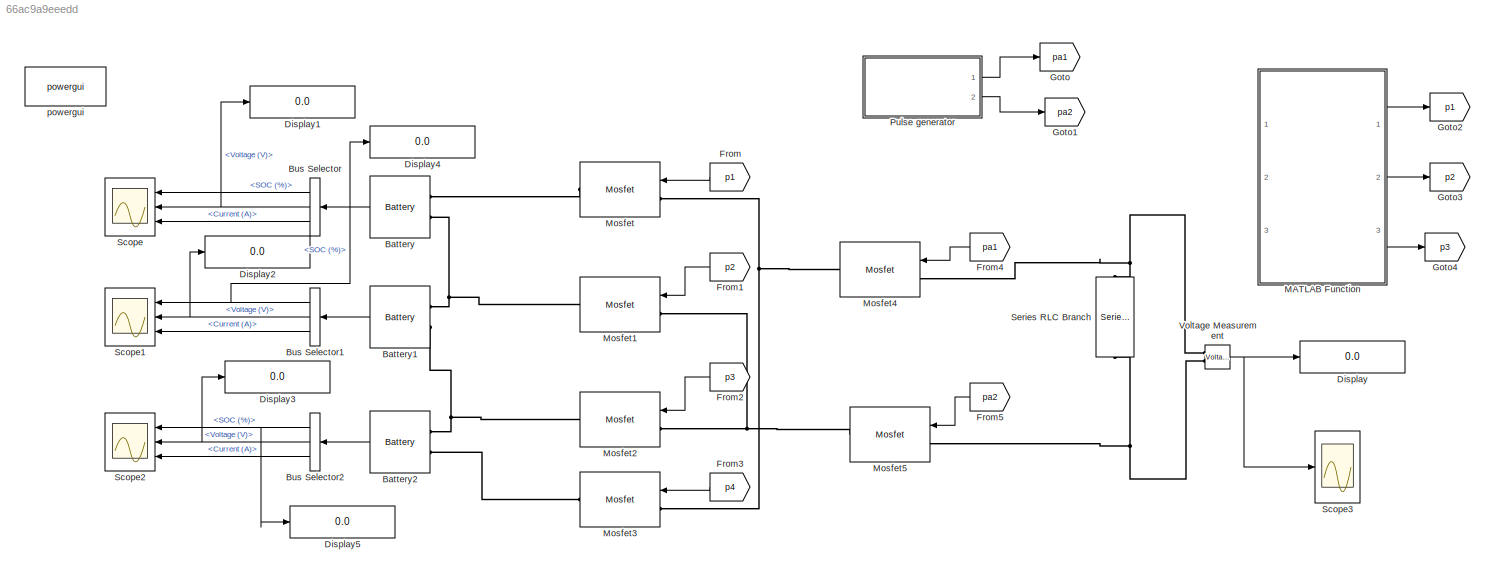
MODEL slx_66ac9a9eeedd
KIND model
CONFIG AbsTol = auto
CONFIG EnableMultiTasking = off
CONFIG FixedStep = auto
CONFIG MaxStep = auto
CONFIG MinStep = auto
CONFIG RelTol = 1e-3
CONFIG SampleTimeConstraint = Unconstrained
CONFIG SolverName = VariableStepAuto
CONFIG StartTime = 0.0
CONFIG StopTime = 1
BLOCK [Reference] Battery  REF=spsBatteryLib/Battery
  Ports = [0, 1, 0, 0, 0, 2]
  SourceBlock = spsBatteryLib/Battery
  SourceProductBaseCode = PS
  SourceType = Battery
BLOCK [Reference] Battery1  REF=spsBatteryLib/Battery
  Ports = [0, 1, 0, 0, 0, 2]
  SourceBlock = spsBatteryLib/Battery
  SourceProductBaseCode = PS
  SourceType = Battery
BLOCK [Reference] Battery2  REF=spsBatteryLib/Battery
  Ports = [0, 1, 0, 0, 0, 2]
  SourceBlock = spsBatteryLib/Battery
  SourceProductBaseCode = PS
  SourceType = Battery
BLOCK [BusSelector] Bus Selector
  OutputSignals = SOC (%),Voltage (V),Current (A)
  Ports = [1, 3]
BLOCK [BusSelector] Bus Selector1
  OutputSignals = SOC (%),Voltage (V),Current (A)
  Ports = [1, 3]
BLOCK [BusSelector] Bus Selector2
  OutputSignals = SOC (%),Voltage (V),Current (A)
  Ports = [1, 3]
BLOCK [Display] Display
  Decimation = 1
  Ports = [1]
BLOCK [Display] Display1
  Decimation = 1
  Ports = [1]
BLOCK [Display] Display2
  Decimation = 1
  Ports = [1]
BLOCK [Display] Display3
  Decimation = 1
  Ports = [1]
BLOCK [Display] Display4
  Decimation = 1
  Ports = [1]
BLOCK [Display] Display5
  Decimation = 1
  Ports = [1]
BLOCK [From] From
  GotoTag = p1
BLOCK [From] From1
  GotoTag = p2
BLOCK [From] From2
  GotoTag = p3
BLOCK [From] From3
  GotoTag = p4
BLOCK [From] From4
  GotoTag = pa1
BLOCK [From] From5
  GotoTag = pa2
BLOCK [Goto] Goto
  GotoTag = pa1
BLOCK [Goto] Goto1
  GotoTag = pa2
BLOCK [Goto] Goto2
  GotoTag = p1
BLOCK [Goto] Goto3
  GotoTag = p2
BLOCK [Goto] Goto4
  GotoTag = p3
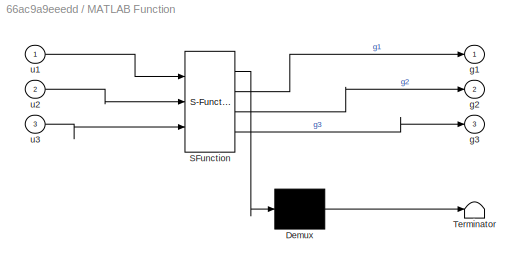
BLOCK [SubSystem] MATLAB Function
  ErrorFcn = Stateflow.Translate.translate
  PermitHierarchicalResolution = ExplicitOnly
  Ports = [3, 3]
  RequestExecContextInheritance = off
  SFBlockType = MATLAB Function
  TreatAsAtomicUnit = on
BLOCK [Demux] MATLAB Function/ Demux 
  Outputs = 1
  Ports = [1, 1]
BLOCK [S-Function] MATLAB Function/ SFunction 
  EnableBusSupport = on
  FunctionName = sf_sfun
  PortCounts = [3 4]
  Ports = [3, 4]
  SFcnIsStateOwnerBlock = off
  SFunctionDeploymentMode = off
  Tag = Stateflow S-Function 2
BLOCK [Terminator] MATLAB Function/ Terminator 
BLOCK [Outport] MATLAB Function/g1
BLOCK [Outport] MATLAB Function/g2
  Port = 2
BLOCK [Outport] MATLAB Function/g3
  Port = 3
BLOCK [Inport] MATLAB Function/u1
BLOCK [Inport] MATLAB Function/u2
  Port = 2
BLOCK [Inport] MATLAB Function/u3
  Port = 3
BLOCK [Reference] Mosfet  REF=spsMosfetLib/Mosfet
  Ports = [1, 0, 0, 0, 0, 1, 1]
  SourceBlock = spsMosfetLib/Mosfet
  SourceProductBaseCode = PS
  SourceType = Mosfet
BLOCK [Reference] Mosfet1  REF=spsMosfetLib/Mosfet
  Ports = [1, 0, 0, 0, 0, 1, 1]
  SourceBlock = spsMosfetLib/Mosfet
  SourceProductBaseCode = PS
  SourceType = Mosfet
BLOCK [Reference] Mosfet2  REF=spsMosfetLib/Mosfet
  Ports = [1, 0, 0, 0, 0, 1, 1]
  SourceBlock = spsMosfetLib/Mosfet
  SourceProductBaseCode = PS
  SourceType = Mosfet
BLOCK [Reference] Mosfet3  REF=spsMosfetLib/Mosfet
  Ports = [1, 0, 0, 0, 0, 1, 1]
  SourceBlock = spsMosfetLib/Mosfet
  SourceProductBaseCode = PS
  SourceType = Mosfet
BLOCK [Reference] Mosfet4  REF=spsMosfetLib/Mosfet
  Ports = [1, 0, 0, 0, 0, 1, 1]
  SourceBlock = spsMosfetLib/Mosfet
  SourceProductBaseCode = PS
  SourceType = Mosfet
BLOCK [Reference] Mosfet5  REF=spsMosfetLib/Mosfet
  Ports = [1, 0, 0, 0, 0, 1, 1]
  SourceBlock = spsMosfetLib/Mosfet
  SourceProductBaseCode = PS
  SourceType = Mosfet
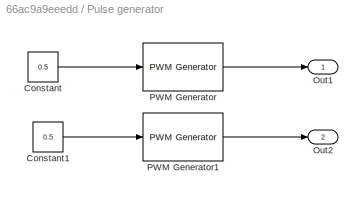
BLOCK [SubSystem] Pulse generator
  Ports = [0, 2]
  RequestExecContextInheritance = off
BLOCK [Constant] Pulse generator/Constant
  Value = 0.5
BLOCK [Constant] Pulse generator/Constant1
  Value = 0.5
BLOCK [Outport] Pulse generator/Out1
BLOCK [Outport] Pulse generator/Out2
  Port = 2
BLOCK [Reference] Pulse generator/PWM Generator  REF=eePwmGenerator/PWM Generator
  Ports = [1, 1]
  SourceBlock = eePwmGenerator/PWM Generator
  SourceProductBaseCode = PS
  SourceType = PWM Generator
BLOCK [Reference] Pulse generator/PWM Generator1  REF=eePwmGenerator/PWM Generator
  Ports = [1, 1]
  SourceBlock = eePwmGenerator/PWM Generator
  SourceProductBaseCode = PS
  SourceType = PWM Generator
BLOCK [Scope] Scope
  Floating = off
  NumInputPorts = 3
  Ports = [3]
  ScopeSpecificationString = Simulink.scopes.TimeScopeBlockCfg('CurrentConfiguration', extmgr.ConfigurationSet(extmgr.Configuration('Core','General UI',true),extmgr.Configuration('Core','Source UI',true),extmgr.Configuration('Sources','WiredSimulink',true),extmgr.Configuration('Visuals','Time Domain',true,'SerializedDisplays',{struct('MinYLimReal','-6.24983','MaxYLimReal','56.24998','YLabelReal','','MinYLimMag','0.00000','Max...<+1430ch>
BLOCK [Scope] Scope1
  Floating = off
  NumInputPorts = 3
  Ports = [3]
  ScopeSpecificationString = Simulink.scopes.TimeScopeBlockCfg('CurrentConfiguration', extmgr.ConfigurationSet(extmgr.Configuration('Core','General UI',true),extmgr.Configuration('Core','Source UI',true),extmgr.Configuration('Sources','WiredSimulink',true,'DataLoggingVariableName','ScopeData1'),extmgr.Configuration('Visuals','Time Domain',true,'SerializedDisplays',{struct('MinYLimReal','29.9999987','MaxYLimReal','30.0000001',...<+2834ch>
BLOCK [Scope] Scope2
  Floating = off
  NumInputPorts = 3
  Ports = [3]
  ScopeSpecificationString = Simulink.scopes.TimeScopeBlockCfg('CurrentConfiguration', extmgr.ConfigurationSet(extmgr.Configuration('Core','General UI',true),extmgr.Configuration('Core','Source UI',true),extmgr.Configuration('Sources','WiredSimulink',true,'DataLoggingVariableName','ScopeData2'),extmgr.Configuration('Visuals','Time Domain',true,'SerializedDisplays',{struct('MinYLimReal','-9.37487','MaxYLimReal','84.37499','YLa...<+2874ch>
BLOCK [Scope] Scope3
  Floating = off
  NumInputPorts = 1
  Ports = [1]
  ScopeSpecificationString = Simulink.scopes.TimeScopeBlockCfg('CurrentConfiguration', extmgr.ConfigurationSet(extmgr.Configuration('Core','General UI',true),extmgr.Configuration('Core','Source UI',true),extmgr.Configuration('Sources','WiredSimulink',true,'DataLoggingVariableName','ScopeData1'),extmgr.Configuration('Visuals','Time Domain',true),extmgr.Configuration('Tools','Plot Navigation',true),extmgr.Configuration('Tools',...<+40ch>
BLOCK [Reference] Series RLC Branch  REF=spsSeriesRLCBranchLib/Series RLC Branch
  NameLocation = left
  Ports = [0, 0, 0, 0, 0, 1, 1]
  SourceBlock = spsSeriesRLCBranchLib/Series RLC Branch
  SourceProductBaseCode = PS
  SourceType = Series RLC Branch
BLOCK [Reference] Voltage Measurement  REF=spsVoltageMeasurementLib/Voltage Measurement
  Ports = [0, 1, 0, 0, 0, 2]
  SourceBlock = spsVoltageMeasurementLib/Voltage Measurement
  SourceProductBaseCode = PS
  SourceType = Voltage Measurement
  UserDataPersistent = on
BLOCK [Reference] powergui  REF=spspowerguiLib/powergui
  Ports = []
  Priority = 1
  SourceBlock = spspowerguiLib/powergui
  SourceProductBaseCode = PS
  SourceType = PSB option menu block
LINE Battery1:1 -> Bus Selector1:1
LINE Battery2:1 -> Bus Selector2:1
LINE Battery:1 -> Bus Selector:1
NET Bus Selector1:1 -> Display4:1, Scope1:1
NET Bus Selector1:2 -> Display2:1, Scope1:2
LINE Bus Selector1:3 -> Scope1:3
NET Bus Selector2:1 -> Display5:1, Scope2:1
NET Bus Selector2:2 -> Display3:1, Scope2:2
LINE Bus Selector2:3 -> Scope2:3
LINE Bus Selector:1 -> Scope:1
NET Bus Selector:2 -> Display1:1, Scope:2
LINE Bus Selector:3 -> Scope:3
LINE From1:1 -> Mosfet1:1
LINE From2:1 -> Mosfet2:1
LINE From3:1 -> Mosfet3:1
LINE From4:1 -> Mosfet4:1
LINE From5:1 -> Mosfet5:1
LINE From:1 -> Mosfet:1
LINE MATLAB Function:1 -> Goto2:1
LINE MATLAB Function:2 -> Goto3:1
LINE MATLAB Function:3 -> Goto4:1
LINE Pulse generator/Constant1:1 -> Pulse generator/PWM Generator1:1
LINE Pulse generator/Constant:1 -> Pulse generator/PWM Generator:1
LINE Pulse generator/PWM Generator1:1 -> Pulse generator/Out2:1
LINE Pulse generator/PWM Generator:1 -> Pulse generator/Out1:1
LINE Pulse generator:1 -> Goto:1
LINE Pulse generator:2 -> Goto1:1
NET Voltage Measurement:1 -> Display:1, Scope3:1
PNET net1: Battery1:LConn1 -- Battery:LConn2 -- Mosfet1:RConn1
PNET net2: Battery1:LConn2 -- Battery2:LConn1 -- Mosfet2:RConn1
PLINE Battery2:LConn2 -- Mosfet3:RConn1
PLINE Battery:LConn1 -- Mosfet:RConn1
PNET net3: Mosfet1:LConn1 -- Mosfet2:LConn1 -- Mosfet5:RConn1
PNET net4: Mosfet3:LConn1 -- Mosfet4:RConn1 -- Mosfet:LConn1
PNET net5: Mosfet4:LConn1 -- Series RLC Branch:RConn1 -- Voltage Measurement:LConn1
PNET net6: Mosfet5:LConn1 -- Series RLC Branch:LConn1 -- Voltage Measurement:LConn2
note: NET lines group one-source signal fan-out (src -> all destinations, sorted); 1:1 wires keep LINE; PNET lines group multi-terminal physical nets as a canonical sorted terminal list (undirected conserving connections); 2-terminal nets keep the pairwise PLINE form
CHART MATLAB Function states=1 transitions=1
  STATE_LABEL 'eML_blk_kernel()'
  STATE_LABEL 'SCRIPT:\n     function [g1,g2,g3] = fcn(u1,u2,u3)\n\nu1 = u1*1000;\nu2 = u2*1000;\nu3 = u3*1000;\n\nu1 = int32(u1);\nu2 = int32(u2);\nu3 = int32(u3);\n\nif u1>u2||u1>u3\n    g1 = 1;\nelse g1 = 0;\nend\n if u2>u1||u2>u3\n     g2 = 1;\n else g2 = 0;\n end\n     if u3>u1||u3>u2\n         g3 = 1;\n     else g3 = 0;\n     end \n\n\n'
CHART  states=0 transitions=0
